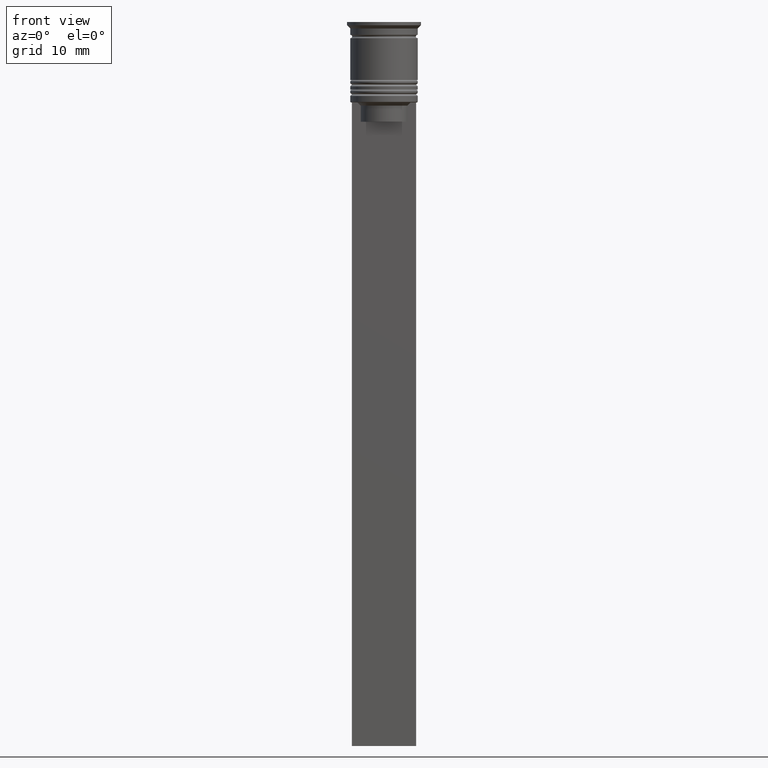
[diagram: clean part render]
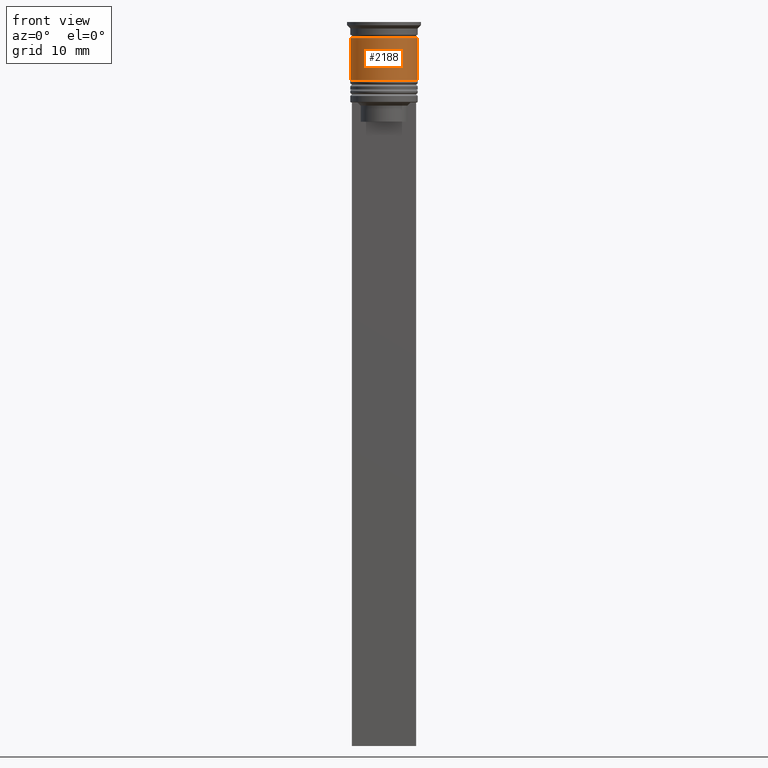
[diagram: same view with one face highlighted and labeled with its STEP entity id]
A machine part, front view. The second image highlights one B-rep face of the part: STEP entity #2188.
In plain terms, the highlighted cylindrical surface (edge-blend (fillet) strip) has radius 5.25 mm, axis along (-0, -0, 1).
Its self-contained STEP definition (entity closure, byte-faithful):
#23 = VECTOR ( 'NONE', #1935, 1000.000000000000000 ) ;
#41 = EDGE_CURVE ( 'NONE', #1378, #472, #1945, .T. ) ;
#115 = AXIS2_PLACEMENT_3D ( 'NONE', #752, #1616, #346 ) ;
#127 = EDGE_LOOP ( 'NONE', ( #1746, #1740, #163, #1399 ) ) ;
#163 = ORIENTED_EDGE ( 'NONE', *, *, #1784, .T. ) ;
#256 = DIRECTION ( 'NONE',  ( -0.000000000000000000, -0.000000000000000000, 1.000000000000000000 ) ) ;
#278 = CARTESIAN_POINT ( 'NONE',  ( 0.000000000000000000, 0.000000000000000000, -9.000000000000001776 ) ) ;
#346 = DIRECTION ( 'NONE',  ( 1.000000000000000000, 0.000000000000000000, 0.000000000000000000 ) ) ;
#381 = FACE_OUTER_BOUND ( 'NONE', #127, .T. ) ;
#472 = VERTEX_POINT ( 'NONE', #562 ) ;
#562 = CARTESIAN_POINT ( 'NONE',  ( -5.249999999999999112, 6.429395695523604153E-16, -2.499999999999999556 ) ) ;
#565 = CIRCLE ( 'NONE', #1894, 5.250000000000000888 ) ;
#641 = CARTESIAN_POINT ( 'NONE',  ( -5.250000000000000000, 6.429395695523604153E-16, 0.000000000000000000 ) ) ;
#675 = CARTESIAN_POINT ( 'NONE',  ( 5.250000000000000888, 0.000000000000000000, -9.000000000000001776 ) ) ;
#752 = CARTESIAN_POINT ( 'NONE',  ( 0.000000000000000000, 0.000000000000000000, 0.000000000000000000 ) ) ;
#851 = VERTEX_POINT ( 'NONE', #675 ) ;
#886 = CARTESIAN_POINT ( 'NONE',  ( 5.250000000000000000, 0.000000000000000000, 0.000000000000000000 ) ) ;
#974 = EDGE_CURVE ( 'NONE', #472, #2324, #2041, .T. ) ;
#1069 = DIRECTION ( 'NONE',  ( 1.000000000000000000, 0.000000000000000000, 0.000000000000000000 ) ) ;
#1270 = CARTESIAN_POINT ( 'NONE',  ( -5.250000000000000888, 6.429395695523605139E-16, -9.000000000000001776 ) ) ;
#1276 = DIRECTION ( 'NONE',  ( -0.000000000000000000, -0.000000000000000000, 1.000000000000000000 ) ) ;
#1378 = VERTEX_POINT ( 'NONE', #1270 ) ;
#1399 = ORIENTED_EDGE ( 'NONE', *, *, #974, .F. ) ;
#1615 = CARTESIAN_POINT ( 'NONE',  ( 0.000000000000000000, 0.000000000000000000, -2.499999999999999556 ) ) ;
#1616 = DIRECTION ( 'NONE',  ( -0.000000000000000000, -0.000000000000000000, 1.000000000000000000 ) ) ;
#1717 = CARTESIAN_POINT ( 'NONE',  ( 5.249999999999999112, 0.000000000000000000, -2.499999999999999556 ) ) ;
#1740 = ORIENTED_EDGE ( 'NONE', *, *, #1882, .T. ) ;
#1746 = ORIENTED_EDGE ( 'NONE', *, *, #41, .F. ) ;
#1784 = EDGE_CURVE ( 'NONE', #851, #2324, #1984, .T. ) ;
#1882 = EDGE_CURVE ( 'NONE', #1378, #851, #565, .T. ) ;
#1894 = AXIS2_PLACEMENT_3D ( 'NONE', #278, #256, #1903 ) ;
#1903 = DIRECTION ( 'NONE',  ( 1.000000000000000000, 0.000000000000000000, 0.000000000000000000 ) ) ;
#1925 = VECTOR ( 'NONE', #2162, 1000.000000000000000 ) ;
#1935 = DIRECTION ( 'NONE',  ( -0.000000000000000000, -0.000000000000000000, 1.000000000000000000 ) ) ;
#1945 = LINE ( 'NONE', #641, #23 ) ;
#1984 = LINE ( 'NONE', #886, #1925 ) ;
#2041 = CIRCLE ( 'NONE', #2075, 5.249999999999999112 ) ;
#2075 = AXIS2_PLACEMENT_3D ( 'NONE', #1615, #1276, #1069 ) ;
#2162 = DIRECTION ( 'NONE',  ( -0.000000000000000000, -0.000000000000000000, 1.000000000000000000 ) ) ;
#2188 = ADVANCED_FACE ( 'NONE', ( #381 ), #2330, .T. ) ;
#2324 = VERTEX_POINT ( 'NONE', #1717 ) ;
#2330 = CYLINDRICAL_SURFACE ( 'NONE', #115, 5.250000000000000000 ) ;